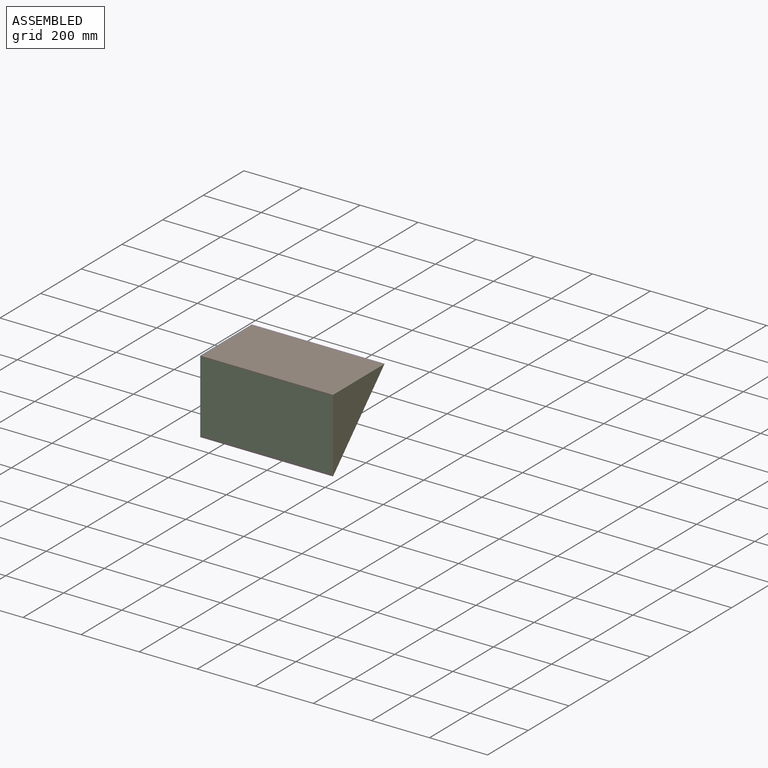
[diagram: assembled view]
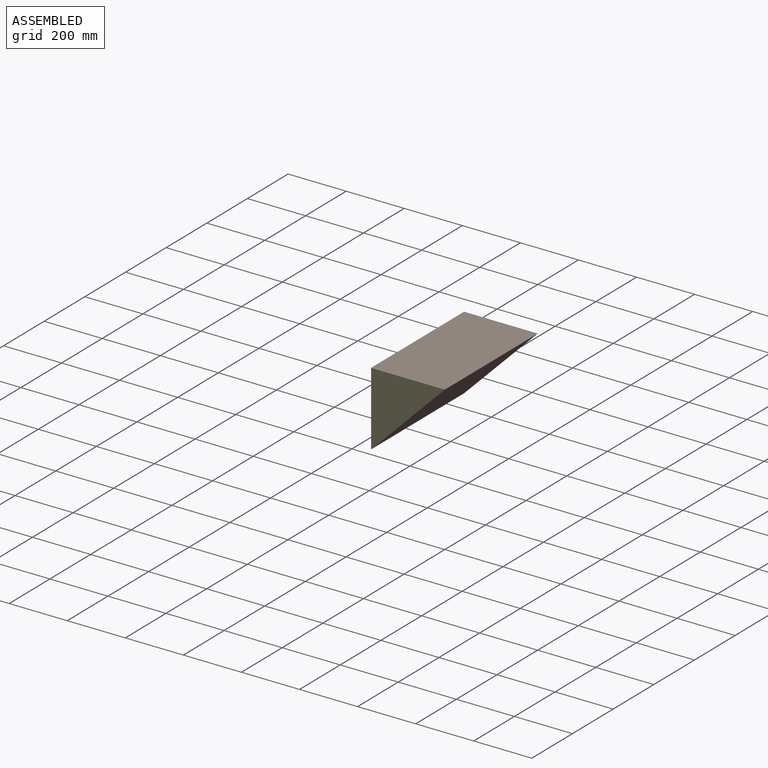
[diagram: assembled view, second angle]
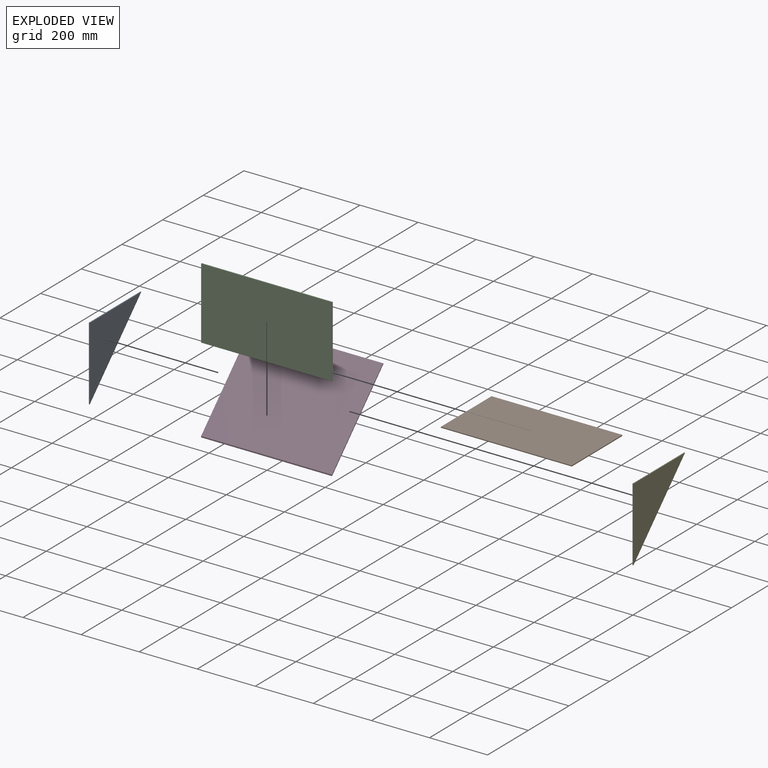
[diagram: exploded view]
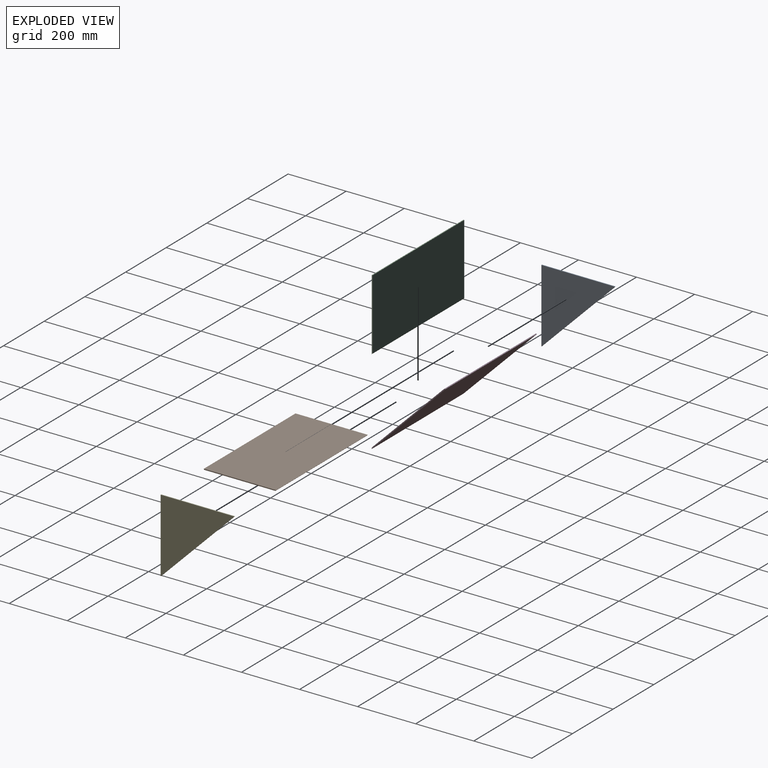
[diagram: exploded view, second angle]
ASSEMBLY  parts=5 mates=12
PART A: 5 faces, bbox 3.2x254x254 mm
  f0: plane 254x3.18mm, normal (0,-1,0), area 806.5mm2, adj f1,f2,f3,f4
  f1: plane 254x3.18mm, normal (0,0,-1), area 806.5mm2, adj f0,f2,f3,f4
  f2: plane 254x254mm, normal (0,0.71,0.71), area 1140.5mm2, adj f0,f1,f3,f4
  f3: plane 254x254mm, normal (-1,0,0), area 32258mm2, adj f0,f1,f2
  f4: plane 254x254mm, normal (1,0,0), area 32258mm2, adj f0,f1,f2
PART B: 6 faces, bbox 249.5x450.9x3.2 mm
  f0: plane 450.85x3.18mm, normal (-1,0,0), area 1431.4mm2, adj f1,f2,f3,f4
  f1: plane 249.51x3.18mm, normal (0,-1,0), area 787.2mm2, adj f0,f3,f4,f5
  f2: plane 249.51x3.18mm, normal (0,1,0), area 787.2mm2, adj f0,f3,f4,f5
  f3: plane 450.85x246.33mm, normal (0,0,1), area 111060mm2, adj f0,f1,f2,f5
  f4: plane 450.85x249.51mm, normal (0,0,-1), area 112491.5mm2, adj f0,f1,f2,f5
  f5: plane 450.85x3.18mm, normal (0.71,0,0.71), area 2024.4mm2, adj f1,f2,f3,f4
PART C: 6 faces, bbox 3.2x450.9x246.3 mm
  f0: plane 246.33x3.18mm, normal (0,1,0), area 777.1mm2, adj f1,f3,f4,f5
  f1: plane 450.85x243.16mm, normal (-1,0,0), area 109628.6mm2, adj f0,f2,f3,f5
  f2: plane 246.33x3.18mm, normal (0,-1,0), area 777.1mm2, adj f1,f3,f4,f5
  f3: plane 450.85x3.18mm, normal (0,0,-1), area 1431.4mm2, adj f0,f1,f2,f4
  f4: plane 450.85x246.33mm, normal (1,0,0), area 111060mm2, adj f0,f2,f3,f5
  f5: plane 450.85x3.18mm, normal (-0.71,0,0.71), area 2024.4mm2, adj f0,f1,f2,f4
PART D: 6 faces, bbox 359.2x450.9x3.2 mm
  f0: plane 359.21x3.18mm, normal (0,-1,0), area 1130.4mm2, adj f2,f3,f4,f5
  f1: plane 359.21x3.18mm, normal (0,1,0), area 1130.4mm2, adj f2,f3,f4,f5
  f2: plane 450.85x352.86mm, normal (0,0,-1), area 159086.6mm2, adj f0,f1,f4,f5
  f3: plane 450.85x359.21mm, normal (0,0,1), area 161949.5mm2, adj f0,f1,f4,f5
  f4: plane 450.85x3.18mm, normal (0.71,0,-0.71), area 2024.4mm2, adj f0,f1,f2,f3
  f5: plane 450.85x3.18mm, normal (-0.71,0,-0.71), area 2024.4mm2, adj f0,f1,f2,f3
PART E: same geometry as A
PLACE A rot(axis=(0,-1,0),180deg) t=(-669.98,-342.77,106.18)mm
PLACE B rot(axis=(0.71,0.71,0),180deg) t=(-666.8,-342.77,106.18)mm
PLACE C rot(axis=(0.71,-0.71,0),180deg) t=(-215.95,-339.6,103.01)mm
PLACE D rot(axis=(-0.68,0.68,0.28),148.6deg) t=(-215.95,-91.02,108.43)mm
PLACE E rot(axis=(0,-1,0),180deg) t=(-215.95,-342.77,106.18)mm
MATE planar E.f4 <-> C.f2  axis (-1,0,0) through (-215.95,-258.1,21.52)mm
MATE planar B.f1 <-> A.f3  axis (-1,0,0) through (-666.8,-218.81,104.6)mm
MATE planar B.f3 <-> C.f3  axis (0,0,-1) through (-441.38,-219.6,103.01)mm
MATE planar A.f3 <-> D.f1  axis (1,0,0) through (-666.8,-258.1,21.52)mm
MATE planar B.f0 <-> A.f0  axis (0,-1,0) through (-441.38,-342.77,104.59)mm
MATE planar C.f4 <-> D.f4  axis (0,-1,0) through (-441.38,-342.77,-20.16)mm
MATE planar B.f4 <-> E.f1  axis (0,0,1) through (-441.38,-218.02,106.18)mm
MATE planar D.f5 <-> B.f4  axis (0,0,1) through (-441.38,-91.02,106.18)mm
MATE planar C.f4 <-> A.f0  axis (0,-1,0) through (-441.38,-342.77,-20.16)mm
MATE planar A.f3 <-> C.f0  axis (1,0,0) through (-666.8,-258.1,21.52)mm
MATE planar C.f4 <-> E.f0  axis (0,-1,0) through (-441.38,-342.77,-20.16)mm
MATE planar A.f1 <-> B.f4  axis (0,0,1) through (-668.39,-215.77,106.18)mm
